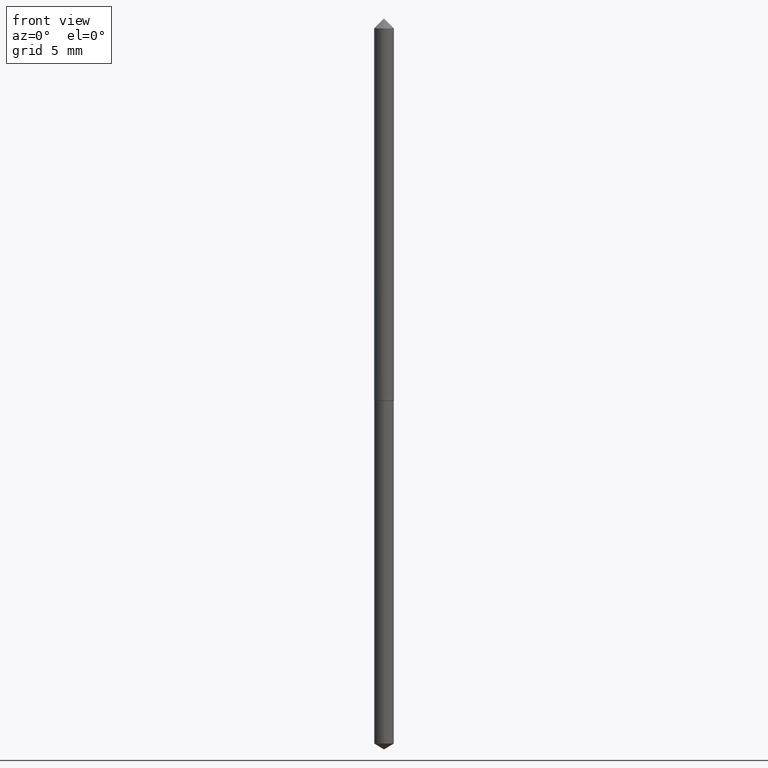
[diagram: clean part render]
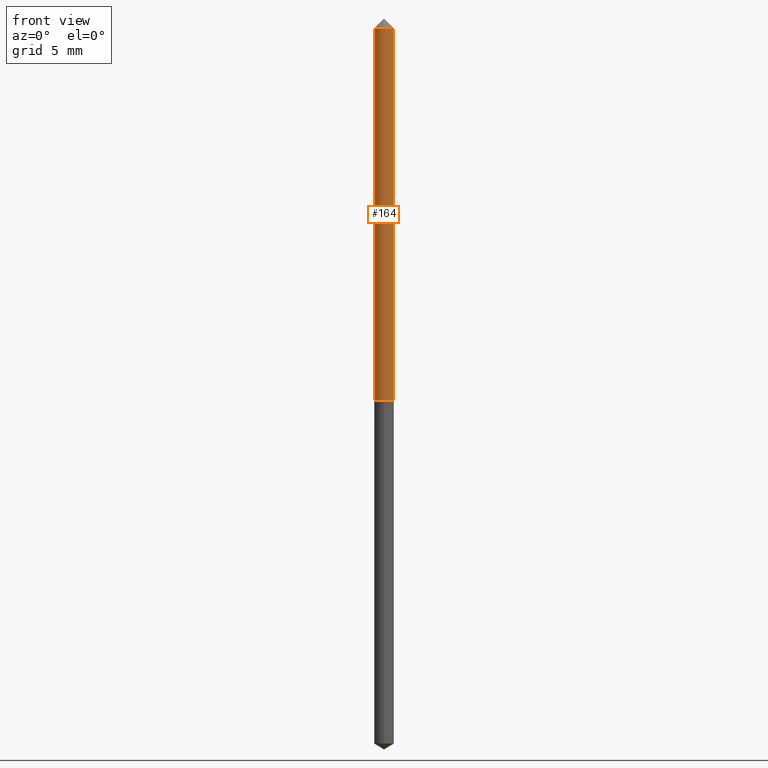
[diagram: same view with one face highlighted and labeled with its STEP entity id]
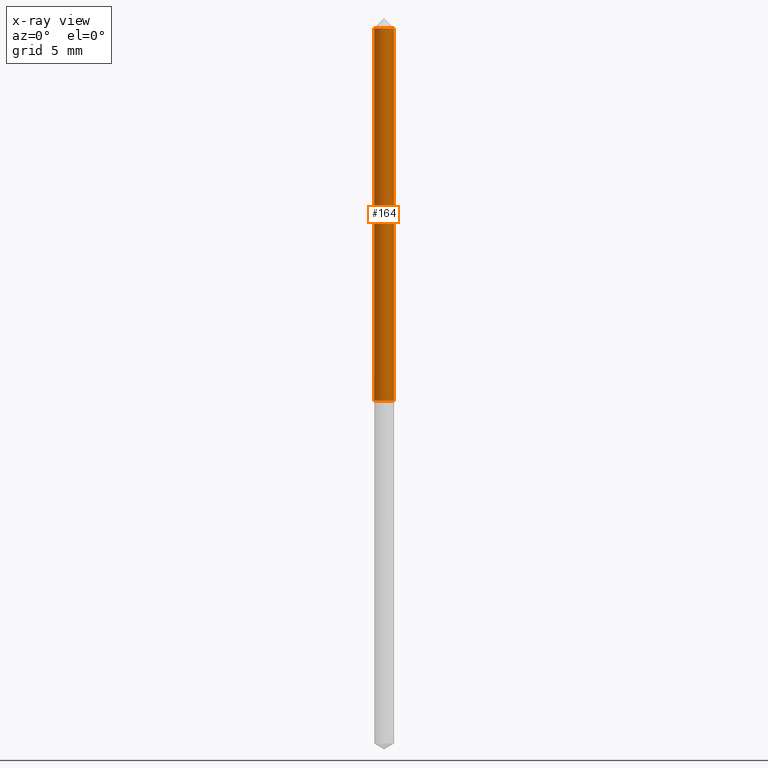
[diagram: x-ray of the same camera — body ghosted, the highlighted face saturated]
A machine part, front view. The second image highlights one B-rep face of the part: STEP entity #164.
The next image is the same camera in x-ray: the body ghosted, the highlighted face saturated — about 0% of this face is hidden behind the body in this view.
In plain terms, the highlighted cylindrical surface (edge-blend (fillet) strip) has radius 0.508 mm, axis along (-0, 0, 1).
Its self-contained STEP definition (entity closure, byte-faithful):
#1 = LINE ( 'NONE', #168, #60 ) ;
#5 = AXIS2_PLACEMENT_3D ( 'NONE', #95, #192, #307 ) ;
#10 = VERTEX_POINT ( 'NONE', #193 ) ;
#14 = CYLINDRICAL_SURFACE ( 'NONE', #66, 0.02000000000000005246 ) ;
#24 = CARTESIAN_POINT ( 'NONE',  ( -0.02000000000000005246, 1.421085471520204099E-16, -9.837870180509835316E-31 ) ) ;
#60 = VECTOR ( 'NONE', #170, 39.37007874015748143 ) ;
#64 = VERTEX_POINT ( 'NONE', #132 ) ;
#66 = AXIS2_PLACEMENT_3D ( 'NONE', #179, #105, #289 ) ;
#73 = CIRCLE ( 'NONE', #273, 0.02000000000000000389 ) ;
#82 = DIRECTION ( 'NONE',  ( -2.445468806185136877E-29, 3.491481338843145188E-15, 1.000000000000000000 ) ) ;
#90 = DIRECTION ( 'NONE',  ( -2.445468806185136597E-29, 3.491481338843145583E-15, 1.000000000000000000 ) ) ;
#93 = ORIENTED_EDGE ( 'NONE', *, *, #220, .F. ) ;
#95 = CARTESIAN_POINT ( 'NONE',  ( 1.930697622483165547E-29, -2.756524517016664181E-15, -0.7895000000000000906 ) ) ;
#102 = VERTEX_POINT ( 'NONE', #263 ) ;
#105 = DIRECTION ( 'NONE',  ( -2.445468806185136597E-29, 3.491481338843145583E-15, 1.000000000000000000 ) ) ;
#132 = CARTESIAN_POINT ( 'NONE',  ( -0.02000000000000009409, -2.614415969864643229E-15, -0.7895000000000000906 ) ) ;
#149 = VERTEX_POINT ( 'NONE', #156 ) ;
#156 = CARTESIAN_POINT ( 'NONE',  ( 0.02000000000000000389, -2.487680453925743658E-16, -0.03125000000000020123 ) ) ;
#164 = ADVANCED_FACE ( 'NONE', ( #203 ), #14, .T. ) ;
#168 = CARTESIAN_POINT ( 'NONE',  ( 0.02000000000000005246, -1.396592535537256843E-16, 9.752353551591896459E-31 ) ) ;
#169 = EDGE_LOOP ( 'NONE', ( #93, #197, #201, #357 ) ) ;
#170 = DIRECTION ( 'NONE',  ( -2.445468806185136877E-29, 3.491481338843145188E-15, 1.000000000000000000 ) ) ;
#179 = CARTESIAN_POINT ( 'NONE',  ( 0.000000000000000000, 0.000000000000000000, 0.000000000000000000 ) ) ;
#192 = DIRECTION ( 'NONE',  ( -2.445468806185136597E-29, 3.491481338843145583E-15, 1.000000000000000000 ) ) ;
#193 = CARTESIAN_POINT ( 'NONE',  ( -0.02000000000000000389, -1.290708107275735097E-15, -0.03125000000000020123 ) ) ;
#197 = ORIENTED_EDGE ( 'NONE', *, *, #364, .T. ) ;
#201 = ORIENTED_EDGE ( 'NONE', *, *, #237, .T. ) ;
#203 = FACE_OUTER_BOUND ( 'NONE', #169, .T. ) ;
#210 = LINE ( 'NONE', #24, #291 ) ;
#218 = CARTESIAN_POINT ( 'NONE',  ( 7.642090019328601786E-31, -1.091087918388490144E-16, -0.03125000000000020123 ) ) ;
#219 = DIRECTION ( 'NONE',  ( 1.000000000000000000, -6.982962677686266711E-15, 0.000000000000000000 ) ) ;
#220 = EDGE_CURVE ( 'NONE', #64, #10, #210, .T. ) ;
#237 = EDGE_CURVE ( 'NONE', #102, #149, #1, .T. ) ;
#263 = CARTESIAN_POINT ( 'NONE',  ( 0.02000000000000009409, -2.896183770570390383E-15, -0.7895000000000000906 ) ) ;
#273 = AXIS2_PLACEMENT_3D ( 'NONE', #218, #90, #219 ) ;
#289 = DIRECTION ( 'NONE',  ( 1.000000000000000000, -6.982962677686265922E-15, 4.876176775795935232E-29 ) ) ;
#291 = VECTOR ( 'NONE', #82, 39.37007874015748143 ) ;
#307 = DIRECTION ( 'NONE',  ( 1.000000000000000000, -6.982962677686276177E-15, 0.000000000000000000 ) ) ;
#319 = CIRCLE ( 'NONE', #5, 0.02000000000000009409 ) ;
#337 = EDGE_CURVE ( 'NONE', #10, #149, #73, .T. ) ;
#357 = ORIENTED_EDGE ( 'NONE', *, *, #337, .F. ) ;
#364 = EDGE_CURVE ( 'NONE', #64, #102, #319, .T. ) ;